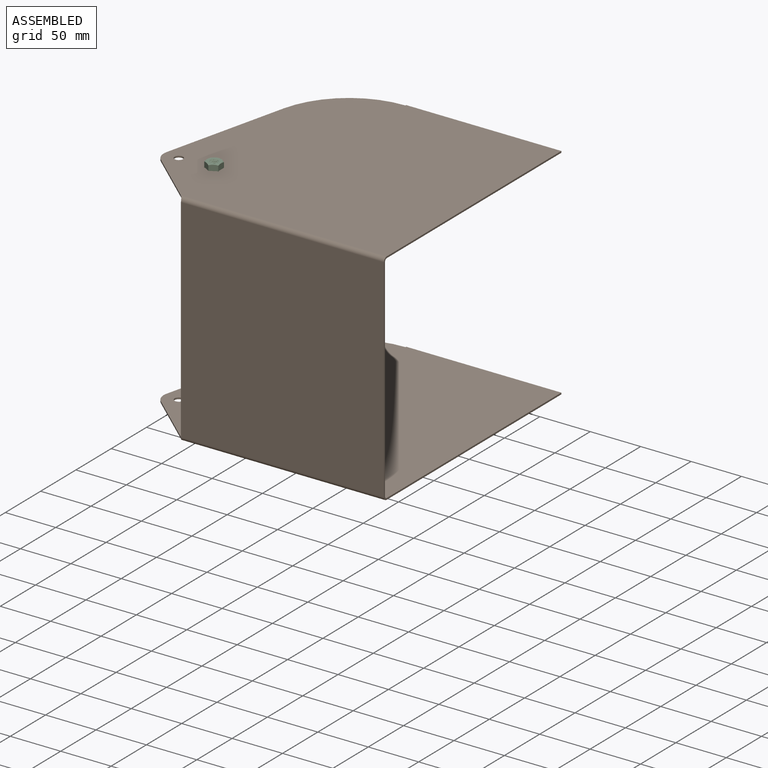
[diagram: assembled view]
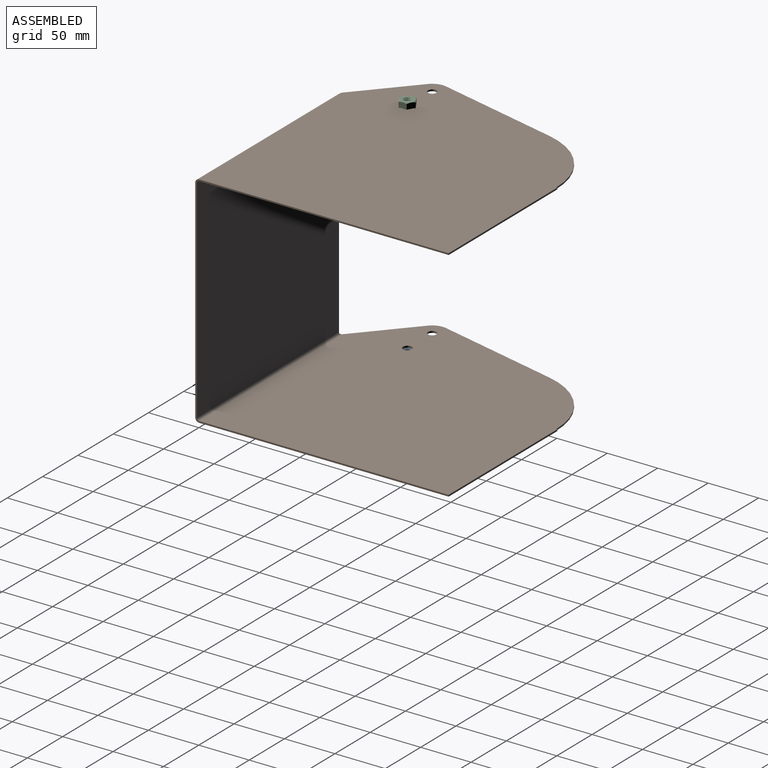
[diagram: assembled view, second angle]
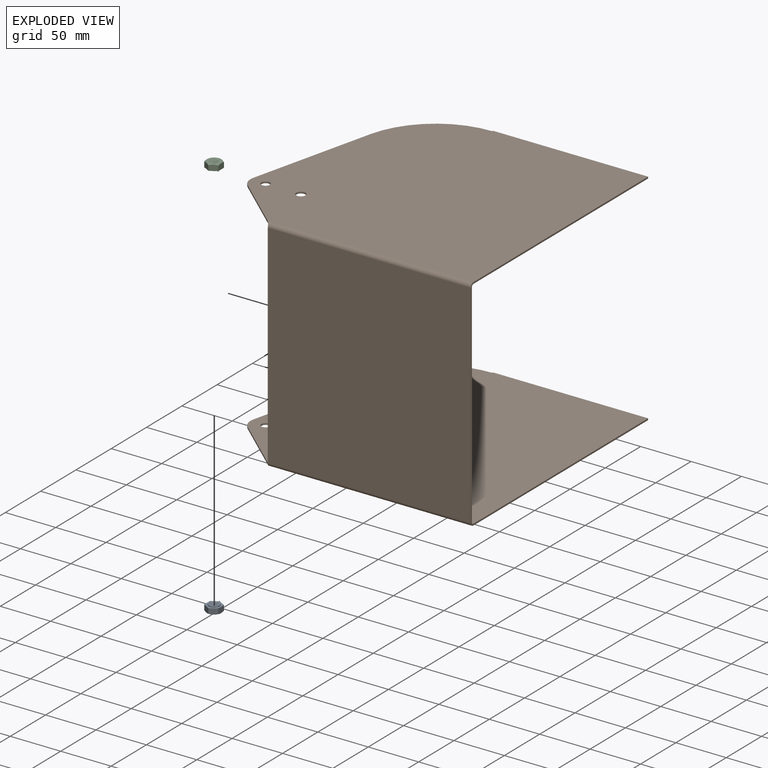
[diagram: exploded view]
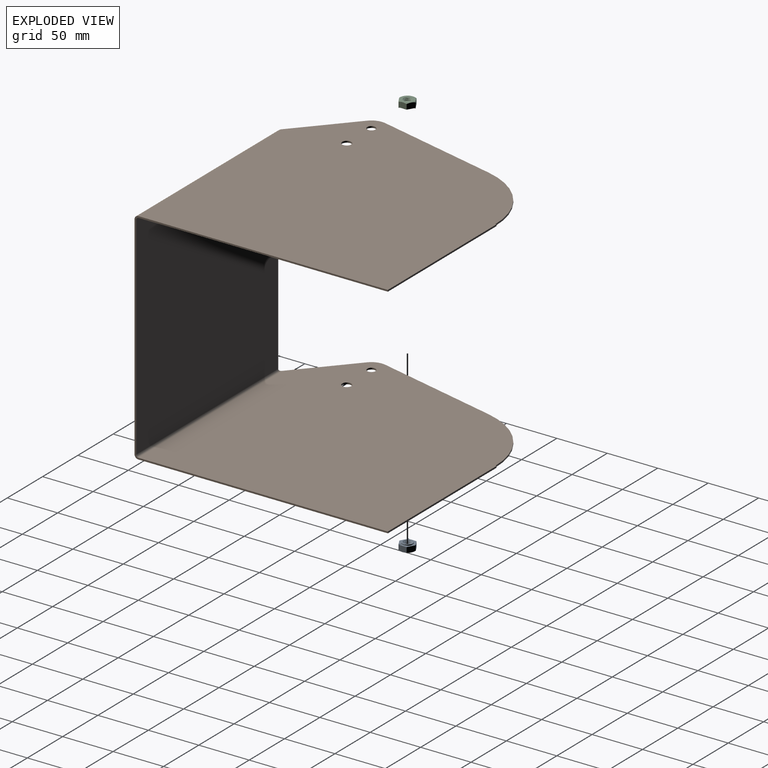
[diagram: exploded view, second angle]
ASSEMBLY  parts=3 mates=2
PART A: 33 faces, bbox 16.8x16.8x8.3 mm
  f0: cone r=4mm half-angle=45deg, axis (0,0,1), area 13.3mm2, adj f3,f8,f9,f11
  f1: cone r=4mm half-angle=45deg, axis (0,0,-1), area 13.2mm2, adj f3,f8,f9,f10
  f2: cylinder r=4mm len=8mm, axis (0,0,-1), area 20.4mm2, adj f8,f9,f10,f11
  f3: cylinder r=3.19mm len=6.38mm, axis (0,0,1), area 12.2mm2, adj f0,f1,f8,f9
  f4: cylinder r=5.25mm len=10.5mm, axis (0,0,1), area 28.6mm2, adj f5,f6,f7,f10,f24,f25,f26,f27
  f5: plane 12.75x4.94mm, normal (0,0,-1), area 24.4mm2, adj f4,f15,f16,f28,f30
  f6: plane 11.04x6.38mm, normal (0,0,-1), area 24.4mm2, adj f4,f12,f17,f24,f31
  f7: plane 11.04x6.38mm, normal (0,0,-1), area 24.4mm2, adj f4,f13,f14,f25,f27
  f8: bspline ~9.24x8mm, area 97.1mm2, adj f0,f1,f2,f3
  f9: bspline ~7.99x7.99mm, area 97mm2, adj f0,f1,f2,f3
  f10: plane 10.5x10.5mm, normal (0,0,-1), area 36.3mm2, adj f1,f2,f4
  f11: plane 14x14mm, normal (0,0,1), area 103.7mm2, adj f0,f2,f18,f19,f20,f21,f22,f23
  f12: plane 7.66x6.71mm, normal (0.5,0.87,0), area 43.7mm2, adj f6,f13,f17,f18,f23,f24,f26
  f13: plane 7.66x6.71mm, normal (-0.5,0.87,0), area 43.7mm2, adj f7,f12,f14,f22,f23,f25,f26
  f14: plane 8.75x6.72mm, normal (-1,0,0), area 43.7mm2, adj f7,f13,f15,f21,f22,f27,f29
  f15: plane 7.66x6.71mm, normal (-0.5,-0.87,0), area 43.7mm2, adj f5,f14,f16,f20,f21,f28,f29
  f16: plane 7.66x6.71mm, normal (0.5,-0.87,0), area 43.7mm2, adj f5,f15,f17,f19,f20,f30,f32
  f17: plane 8.75x6.72mm, normal (1,0,0), area 43.7mm2, adj f6,f12,f16,f18,f19,f31,f32
  f18: cone r=7mm half-angle=60deg, axis (0,0,-1), area 4.8mm2, adj f11,f12,f17
  f19: cone r=7mm half-angle=60deg, axis (0,0,-1), area 4.8mm2, adj f11,f16,f17
  f20: cone r=7mm half-angle=60deg, axis (0,0,-1), area 4.8mm2, adj f11,f15,f16
  f21: cone r=7mm half-angle=60deg, axis (0,0,-1), area 4.8mm2, adj f11,f14,f15
  f22: cone r=7mm half-angle=60deg, axis (0,0,-1), area 4.8mm2, adj f11,f13,f14
  f23: cone r=7mm half-angle=60deg, axis (0,0,-1), area 4.8mm2, adj f11,f12,f13
  f24: plane 2.77x0.45mm, normal (0.71,0,-0.71), area 1.7mm2, adj f4,f6,f12,f26
  f25: plane 2.77x0.45mm, normal (-0.71,0,-0.71), area 1.7mm2, adj f4,f7,f13,f26
  f26: plane 2.84x0.35mm, normal (0,0,-1), area 1mm2, adj f4,f12,f13,f24,f25
  f27: plane 2.37x1.77mm, normal (-0.35,0.61,-0.71), area 1.7mm2, adj f4,f7,f14,f29
  f28: plane 2.62x1.63mm, normal (0.35,-0.61,-0.71), area 1.7mm2, adj f4,f5,f15,f29
  f29: plane 2.54x1.67mm, normal (0,0,-1), area 1mm2, adj f4,f14,f15,f27,f28
  f30: plane 2.62x1.63mm, normal (-0.35,-0.61,-0.71), area 1.7mm2, adj f4,f5,f16,f32
  f31: plane 2.37x1.77mm, normal (0.35,0.61,-0.71), area 1.7mm2, adj f4,f6,f17,f32
  f32: plane 2.54x1.67mm, normal (0,0,-1), area 1mm2, adj f4,f16,f17,f30,f31
PART B: 34 faces, bbox 218.2x251.3x261.9 mm
  f0: plane 1.6x0.98mm, normal (0,0,1), area 1.6mm2, adj f1,f8,f9,f10
  f1: plane 153.91x1.6mm, normal (0,1,0), area 246.3mm2, adj f0,f2,f9,f10
  f2: plane 247.38x1.6mm, normal (0,0,-1), area 395.8mm2, adj f1,f9,f10,f30
  f3: plane 52.92x46.99mm, normal (0,-0.75,0.66), area 113.2mm2, adj f4,f9,f10,f31
  f4: cylinder r=15mm len=14.74mm, axis (-1,0,0), area 26mm2, adj f3,f5,f9,f10
  f5: plane 123.45x29.8mm, normal (0,0.23,0.97), area 203.2mm2, adj f4,f8,f9,f10
  f6: cylinder r=4.5mm len=9mm, axis (-1,0,0), area 45.2mm2, adj f9,f10
  f7: cylinder r=4.15mm len=8.3mm, axis (-1,0,0), area 41.7mm2, adj f9,f10
  f8: cylinder r=80mm len=77.77mm, axis (-1,0,0), area 170.7mm2, adj f0,f5,f9,f10
  f9: plane 261.9x247.38mm, normal (-1,0,0), area 58102.2mm2, adj f0,f1,f2,f3,f4,f5,f6,f7
  f10: plane 261.9x247.38mm, normal (1,0,0), area 58102.2mm2, adj f0,f1,f2,f3,f4,f5,f6,f7
  f11: plane 52.92x46.99mm, normal (0,-0.75,0.66), area 113.2mm2, adj f19,f20,f21,f27
  f12: plane 247.38x1.6mm, normal (0,0,-1), area 395.8mm2, adj f13,f20,f21,f26
  f13: plane 153.91x1.6mm, normal (0,1,0), area 246.3mm2, adj f12,f14,f20,f21
  f14: plane 1.6x0.98mm, normal (0,0,1), area 1.6mm2, adj f13,f15,f20,f21
  f15: cylinder r=80mm len=77.77mm, axis (-1,0,0), area 170.7mm2, adj f14,f16,f20,f21
  f16: plane 123.45x29.8mm, normal (0,0.23,0.97), area 203.2mm2, adj f15,f19,f20,f21
  f17: cylinder r=4.5mm len=9mm, axis (-1,0,0), area 45.2mm2, adj f20,f21
  f18: cylinder r=4.15mm len=8.3mm, axis (-1,0,0), area 41.7mm2, adj f20,f21
  f19: cylinder r=15mm len=14.74mm, axis (-1,0,0), area 26mm2, adj f11,f16,f20,f21
  f20: plane 261.9x247.38mm, normal (1,0,0), area 58102.2mm2, adj f11,f12,f13,f14,f15,f16,f17,f18
  f21: plane 261.9x247.38mm, normal (-1,0,0), area 58102.2mm2, adj f11,f12,f13,f14,f15,f16,f17,f18
  f22: plane 210.4x1.6mm, normal (0,0,1), area 336.6mm2, adj f24,f25,f27,f31
  f23: plane 210.4x1.6mm, normal (0,0,-1), area 336.6mm2, adj f24,f25,f26,f30
  f24: plane 210.4x201.34mm, normal (0,-1,0), area 42362.6mm2, adj f22,f23,f28,f32
  f25: plane 210.4x201.34mm, normal (0,1,0), area 42362.6mm2, adj f22,f23,f29,f33
  f26: plane 3.9x3.9mm, normal (0,0,-1), area 7.8mm2, adj f12,f23,f28,f29
  f27: bspline ~3.9x3.9mm, area 9.3mm2, adj f11,f22,f28,f29
  f28: cylinder r=3.9mm len=203.93mm, axis (0,0,-1), area 1238.1mm2, adj f20,f24,f26,f27
  f29: cylinder r=2.3mm len=203.93mm, axis (0,0,-1), area 730.2mm2, adj f21,f25,f26,f27
  f30: plane 3.9x3.9mm, normal (0,0,-1), area 7.8mm2, adj f2,f23,f32,f33
  f31: bspline ~3.9x3.9mm, area 9.3mm2, adj f3,f22,f32,f33
  f32: cylinder r=3.9mm len=203.93mm, axis (0,0,-1), area 1238.1mm2, adj f9,f24,f30,f31
  f33: cylinder r=2.3mm len=203.93mm, axis (0,0,-1), area 730.2mm2, adj f10,f25,f30,f31
PART C: same geometry as A
PLACE A rot(axis=(0,1,0),180deg) t=(-144.45,30.82,-51.02)mm
PLACE B rot(axis=(0,-1,0),90deg) t=(20.55,-30.98,-45.92)mm
PLACE C t=(-144.45,30.82,168.98)mm
MATE fastened B.f6 <-> C.f0  axis (0,0,1) through (-144.45,30.82,168.08)mm
MATE fastened B.f6 <-> A.f0  axis (0,0,-1) through (-144.45,30.82,-50.12)mm
